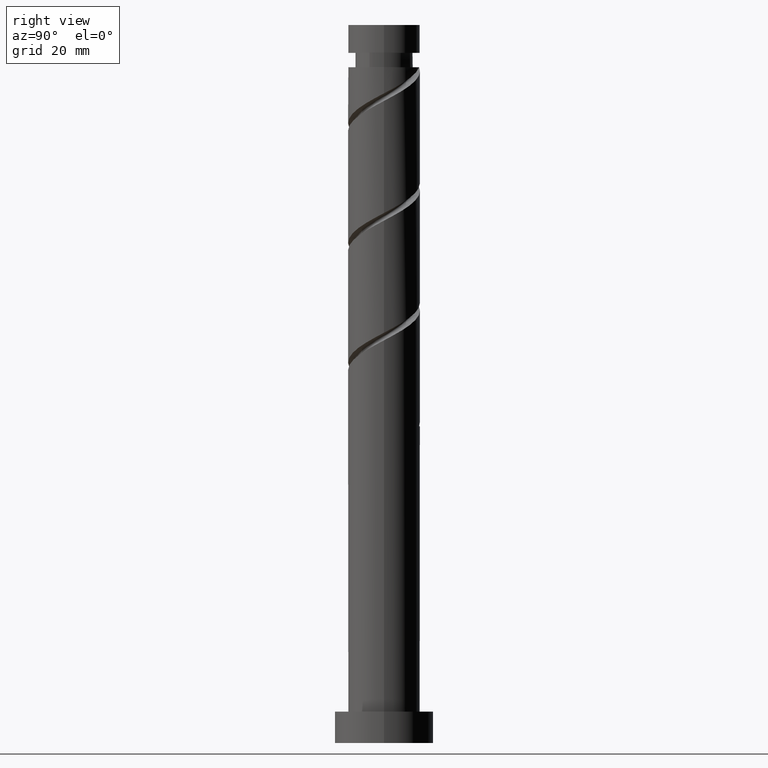
[diagram: clean part render]
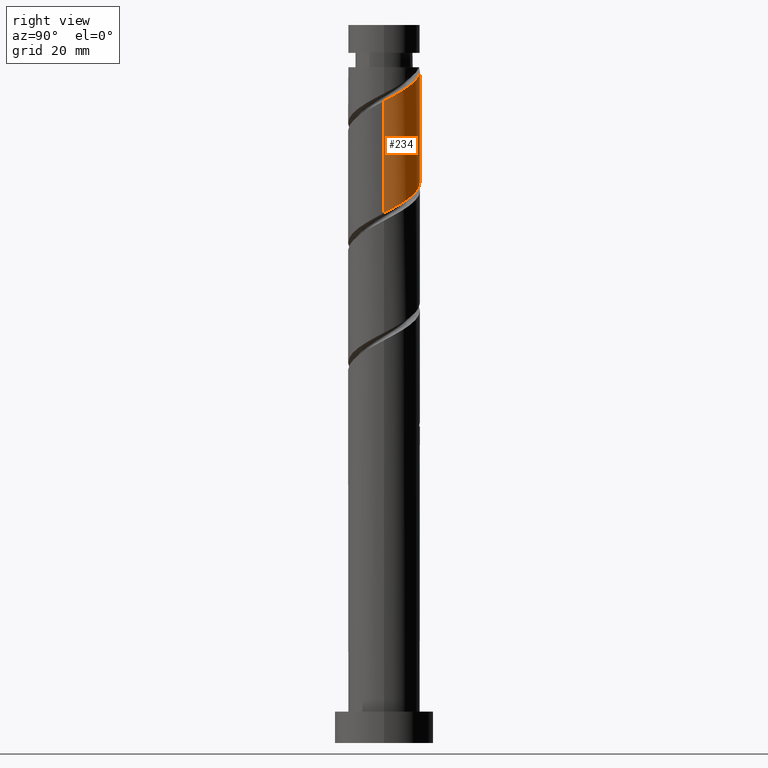
[diagram: same view with one face highlighted and labeled with its STEP entity id]
A machine part, right view. The second image highlights one B-rep face of the part: STEP entity #234.
In plain terms, the highlighted cylindrical surface (edge-blend (fillet) strip) has radius 8 mm, axis along (-0, -0, -1).
Its self-contained STEP definition (entity closure, byte-faithful):
#12 = ORIENTED_EDGE ( 'NONE', *, *, #535, .T. ) ;
#16 = EDGE_CURVE ( 'NONE', #1109, #973, #596, .T. ) ;
#20 = CARTESIAN_POINT ( 'NONE',  ( -8.000000000000001776, -3.649464251653161335E-15, 131.4389416748697386 ) ) ;
#23 = CARTESIAN_POINT ( 'NONE',  ( -0.4647580744499439365, 8.068892154005800066, 149.9834265895081558 ) ) ;
#27 = VECTOR ( 'NONE', #94, 1000.000000000000000 ) ;
#59 = DIRECTION ( 'NONE',  ( -1.000000000000000000, 0.000000000000000000, 0.000000000000000000 ) ) ;
#67 = FACE_OUTER_BOUND ( 'NONE', #1267, .T. ) ;
#81 = CARTESIAN_POINT ( 'NONE',  ( -7.986762466259759385, 0.4600275073779082624, 131.1955478016294592 ) ) ;
#94 = DIRECTION ( 'NONE',  ( -0.000000000000000000, -0.000000000000000000, -1.000000000000000000 ) ) ;
#95 = CARTESIAN_POINT ( 'NONE',  ( -6.470182492983645339, 4.704969554363545470, 128.7713053773870229 ) ) ;
#105 = CARTESIAN_POINT ( 'NONE',  ( 4.753351822145629235, 6.536716845301431711, 122.1046387107203373 ) ) ;
#133 = CARTESIAN_POINT ( 'NONE',  ( 8.000000000000014211, 0.2302042121905726324, 143.1954640543194728 ) ) ;
#138 = VERTEX_POINT ( 'NONE', #1088 ) ;
#158 = CARTESIAN_POINT ( 'NONE',  ( 1.827337510560427258, 7.872982807249216286, 148.7713053773870229 ) ) ;
#223 = CARTESIAN_POINT ( 'NONE',  ( 5.577882723393622122, 5.734738383227862890, 121.4985781046597566 ) ) ;
#230 = CARTESIAN_POINT ( 'NONE',  ( -8.000000000000000000, 0.000000000000000000, 160.0000000000000000 ) ) ;
#232 = CARTESIAN_POINT ( 'NONE',  ( -4.882551537609417736, 6.337246285460896189, 127.5591841652657905 ) ) ;
#234 = ADVANCED_FACE ( 'NONE', ( #67 ), #436, .T. ) ;
#249 = CARTESIAN_POINT ( 'NONE',  ( 0.4647580744500025007, 8.068892154005791184, 124.5288811349628020 ) ) ;
#268 = CARTESIAN_POINT ( 'NONE',  ( 7.986762466259771820, 0.4600275073779058754, 143.3167599228415270 ) ) ;
#275 = EDGE_CURVE ( 'NONE', #735, #276, #1496, .T. ) ;
#276 = VERTEX_POINT ( 'NONE', #1650 ) ;
#300 = CIRCLE ( 'NONE', #484, 7.999999999999994671 ) ;
#373 = DIRECTION ( 'NONE',  ( -0.000000000000000000, -0.000000000000000000, -1.000000000000000000 ) ) ;
#436 = CYLINDRICAL_SURFACE ( 'NONE', #1245, 8.000000000000000000 ) ;
#448 = CARTESIAN_POINT ( 'NONE',  ( -1.591979899370592921, 7.840000000000014069, 150.5894871955688359 ) ) ;
#451 = DIRECTION ( 'NONE',  ( -0.000000000000000000, -0.000000000000000000, -1.000000000000000000 ) ) ;
#484 = AXIS2_PLACEMENT_3D ( 'NONE', #612, #485, #1007 ) ;
#485 = DIRECTION ( 'NONE',  ( -0.000000000000000000, -0.000000000000000000, -1.000000000000000000 ) ) ;
#486 = CARTESIAN_POINT ( 'NONE',  ( 2.719201724291183897, 7.611107845994205867, 123.3167599228415696 ) ) ;
#492 = EDGE_CURVE ( 'NONE', #138, #973, #300, .T. ) ;
#504 = CARTESIAN_POINT ( 'NONE',  ( 8.000000000000000000, 0.9162314190809759396, 118.5915682945076810 ) ) ;
#514 = EDGE_CURVE ( 'NONE', #138, #735, #1388, .T. ) ;
#535 = EDGE_CURVE ( 'NONE', #1109, #276, #996, .T. ) ;
#551 = CARTESIAN_POINT ( 'NONE',  ( 0.6812897180552129894, 7.970937480627512173, 149.3773659834476462 ) ) ;
#596 =( BOUNDED_CURVE ( )  B_SPLINE_CURVE ( 2, ( #665, #133, #268, #811, #1570, #789, #1436, #1171, #1178, #1317, #1443, #158, #551, #23, #779 ),
 .UNSPECIFIED., .F., .T. ) 
 B_SPLINE_CURVE_WITH_KNOTS ( ( 3, 2, 2, 2, 2, 2, 2, 3 ),
 ( 0.6795252162417513286, 0.6818181818181818787, 0.6931818181818180102, 0.7045454545454543638, 0.7159090909090904953, 0.7272727272727269598, 0.7386363636363632024, 0.7499999999999994449 ),
 .UNSPECIFIED. ) 
 CURVE ( )  GEOMETRIC_REPRESENTATION_ITEM ( )  RATIONAL_B_SPLINE_CURVE ( ( 0.9061101570135589034, 0.9072237824201410117, 0.9090909090909186085, 0.8998376744372208469, 0.9090909090909186085, 0.8998376744372208469, 0.9090909090909186085, 0.8998376744372208469, 0.9090909090909186085, 0.8998376744372208469, 0.9090909090909186085, 0.8998376744372208469, 0.9090909090909186085, 0.8998376744372212910, 0.9090909090909181645 ) ) 
 REPRESENTATION_ITEM ( '' )  );
#603 = CARTESIAN_POINT ( 'NONE',  ( -1.827337510560422373, 7.872982807249202075, 125.7410023470839917 ) ) ;
#612 = CARTESIAN_POINT ( 'NONE',  ( 0.000000000000000000, 0.000000000000000000, 150.5894871955688359 ) ) ;
#615 = ORIENTED_EDGE ( 'NONE', *, *, #16, .F. ) ;
#624 = CARTESIAN_POINT ( 'NONE',  ( 7.532789951889087732, 2.929180124448051536, 119.6803962864779010 ) ) ;
#633 = CARTESIAN_POINT ( 'NONE',  ( 6.402413624641617673, 4.932759921154293181, 120.8925174985991333 ) ) ;
#640 = CARTESIAN_POINT ( 'NONE',  ( 8.000000000000000000, 9.797174393178825657E-16, 160.0000000000000000 ) ) ;
#665 = CARTESIAN_POINT ( 'NONE',  ( 8.000000000000012434, 4.935750832153824202E-15, 143.0733660496012476 ) ) ;
#723 = CARTESIAN_POINT ( 'NONE',  ( -8.000000000000001776, 0.2302042121905727989, 131.3168436701515418 ) ) ;
#735 = VERTEX_POINT ( 'NONE', #20 ) ;
#742 = CARTESIAN_POINT ( 'NONE',  ( 7.792847194175199554, 1.808737849506028006, 119.0743356804173061 ) ) ;
#779 = CARTESIAN_POINT ( 'NONE',  ( -1.591979899370592921, 7.840000000000014069, 150.5894871955688359 ) ) ;
#789 = CARTESIAN_POINT ( 'NONE',  ( 7.146654988808342601, 3.774697753686218071, 145.1349417410234253 ) ) ;
#811 = CARTESIAN_POINT ( 'NONE',  ( 7.920620496058218052, 1.608350589319820667, 143.9228205289021787 ) ) ;
#855 = ORIENTED_EDGE ( 'NONE', *, *, #514, .F. ) ;
#860 = CARTESIAN_POINT ( 'NONE',  ( 8.000000000000012434, 4.935750832153824202E-15, 143.0733660496012476 ) ) ;
#872 = CARTESIAN_POINT ( 'NONE',  ( -3.971393078059868742, 7.039251215880911516, 126.9531235592051814 ) ) ;
#881 = CARTESIAN_POINT ( 'NONE',  ( -7.146654988808328390, 3.774697753686216295, 129.3773659834476177 ) ) ;
#940 = CARTESIAN_POINT ( 'NONE',  ( -7.533637742433263895, 2.691524171503017815, 129.9834265895082410 ) ) ;
#973 = VERTEX_POINT ( 'NONE', #448 ) ;
#978 = CARTESIAN_POINT ( 'NONE',  ( -2.899365294310145114, 7.456117011565057240, 126.3470629531446008 ) ) ;
#996 = LINE ( 'NONE', #640, #27 ) ;
#1007 = DIRECTION ( 'NONE',  ( -1.000000000000000000, 0.000000000000000000, 0.000000000000000000 ) ) ;
#1088 = CARTESIAN_POINT ( 'NONE',  ( -7.999999999999994671, 0.000000000000000000, 150.5894871955688359 ) ) ;
#1109 = VERTEX_POINT ( 'NONE', #860 ) ;
#1111 = CARTESIAN_POINT ( 'NONE',  ( -7.920620496058202953, 1.608350589319821333, 130.5894871955688359 ) ) ;
#1120 = CARTESIAN_POINT ( 'NONE',  ( 6.967601788265351814, 3.930970022801174579, 120.2864568925385527 ) ) ;
#1134 = VECTOR ( 'NONE', #373, 1000.000000000000000 ) ;
#1140 = ORIENTED_EDGE ( 'NONE', *, *, #492, .T. ) ;
#1151 = CARTESIAN_POINT ( 'NONE',  ( 1.591979899370594920, 7.840000000000000746, 123.9228205289021361 ) ) ;
#1171 = CARTESIAN_POINT ( 'NONE',  ( 5.793709997158980940, 5.635241355040886191, 146.3470629531446150 ) ) ;
#1178 = CARTESIAN_POINT ( 'NONE',  ( 4.882551537609424841, 6.337246285460905071, 146.9531235592052099 ) ) ;
#1230 = CARTESIAN_POINT ( 'NONE',  ( 0.000000000000000000, 0.000000000000000000, 160.0000000000000000 ) ) ;
#1245 = AXIS2_PLACEMENT_3D ( 'NONE', #1230, #451, #59 ) ;
#1258 = CARTESIAN_POINT ( 'NONE',  ( 8.000000000000000000, -9.183487911946886666E-15, 118.1056083415363815 ) ) ;
#1267 = EDGE_LOOP ( 'NONE', ( #615, #12, #1292, #855, #1140 ) ) ;
#1282 = CARTESIAN_POINT ( 'NONE',  ( 3.736276773218408120, 7.073912345647820565, 122.7106993167809321 ) ) ;
#1292 = ORIENTED_EDGE ( 'NONE', *, *, #275, .F. ) ;
#1317 = CARTESIAN_POINT ( 'NONE',  ( 3.971393078059875403, 7.039251215880921286, 147.5591841652658331 ) ) ;
#1357 = CARTESIAN_POINT ( 'NONE',  ( -8.000000000000001776, -3.649464251653161335E-15, 131.4389416748697386 ) ) ;
#1371 = CARTESIAN_POINT ( 'NONE',  ( -5.793709997158964953, 5.635241355040879974, 128.1652447713264280 ) ) ;
#1388 = LINE ( 'NONE', #230, #1134 ) ;
#1407 = CARTESIAN_POINT ( 'NONE',  ( -0.6812897180552097698, 7.970937480627497074, 125.1349417410234111 ) ) ;
#1436 = CARTESIAN_POINT ( 'NONE',  ( 6.470182492983660438, 4.704969554363551687, 145.7410023470839633 ) ) ;
#1443 = CARTESIAN_POINT ( 'NONE',  ( 2.899365294310149999, 7.456117011565067898, 148.1652447713264280 ) ) ;
#1496 =( BOUNDED_CURVE ( )  B_SPLINE_CURVE ( 2, ( #1357, #723, #81, #1111, #940, #881, #95, #1371, #232, #872, #978, #603, #1407, #249, #1151, #486, #1282, #105, #223, #633, #1120, #624, #742, #504, #1258 ),
 .UNSPECIFIED., .F., .T. ) 
 B_SPLINE_CURVE_WITH_KNOTS ( ( 3, 2, 2, 2, 2, 2, 2, 2, 2, 2, 2, 2, 3 ),
 ( 0.4295252162417512731, 0.4318181818181818232, 0.4431818181818181768, 0.4545454545454545303, 0.4659090909090908839, 0.4772727272727272929, 0.4886363636363636465, 0.5000000000000000000, 0.5113636363636363535, 0.5227272727272727071, 0.5340909090909090606, 0.5454545454545454142, 0.5545252162417513286 ),
 .UNSPECIFIED. ) 
 CURVE ( )  GEOMETRIC_REPRESENTATION_ITEM ( )  RATIONAL_B_SPLINE_CURVE ( ( 0.9061101570135514649, 0.9072237824201335732, 0.9090909090909111701, 0.8998376744372136304, 0.9090909090909111701, 0.8998376744372136304, 0.9090909090909111701, 0.8998376744372136304, 0.9090909090909111701, 0.8998376744372136304, 0.9090909090909111701, 0.8998376744372136304, 0.9090909090909111701, 0.8998376744372136304, 0.9090909090909111701, 0.8998376744372136304, 0.9090909090909111701, 0.8998376744372136304, 0.9090909090909111701, 0.8998376744372136304, 0.9090909090909111701, 0.8998376744372136304, 0.9090909090909111701, 0.9017048011079911163, 0.9061101570135515759 ) ) 
 REPRESENTATION_ITEM ( '' )  );
#1570 = CARTESIAN_POINT ( 'NONE',  ( 7.533637742433276330, 2.691524171503018703, 144.5288811349627451 ) ) ;
#1650 = CARTESIAN_POINT ( 'NONE',  ( 8.000000000000000000, -9.183487911946886666E-15, 118.1056083415363815 ) ) ;